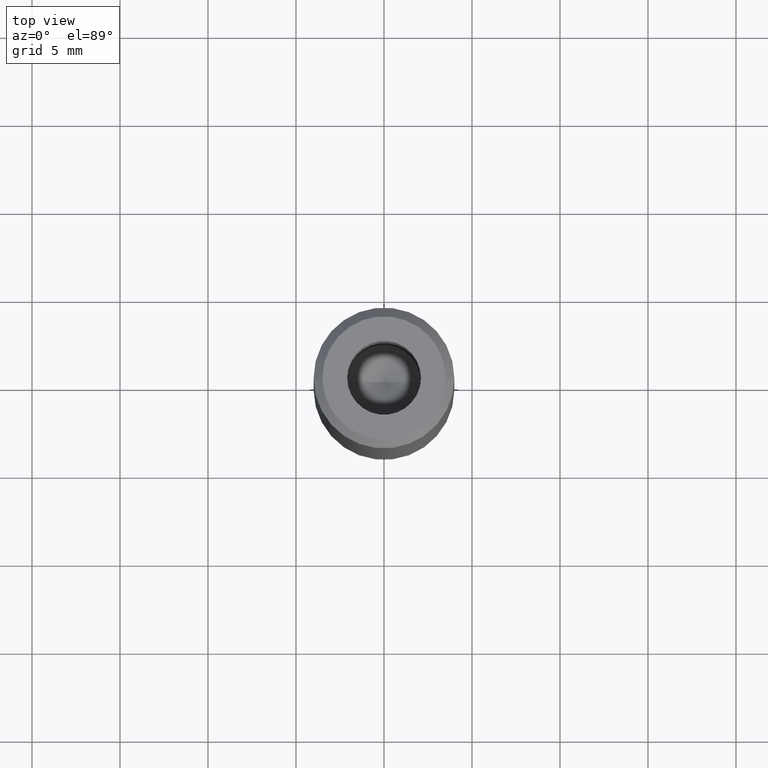
[diagram: clean part render]
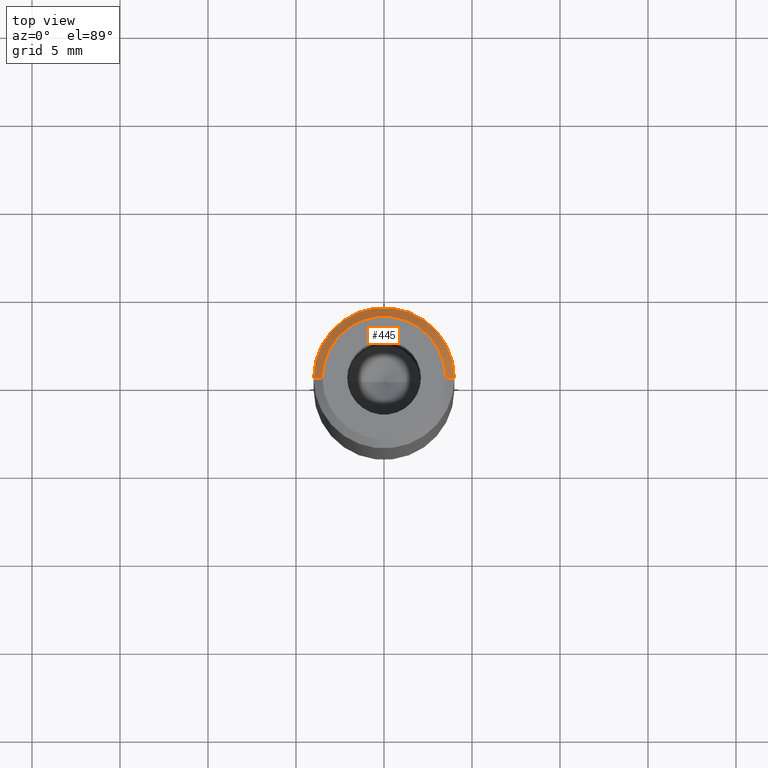
[diagram: same view with one face highlighted and labeled with its STEP entity id]
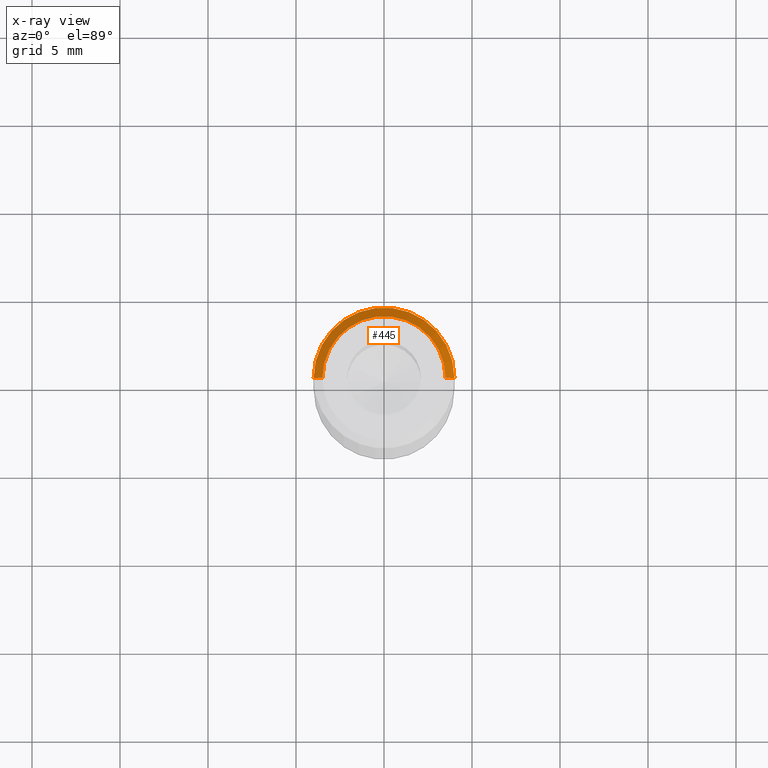
[diagram: x-ray of the same camera — body ghosted, the highlighted face saturated]
A machine part, top view. The second image highlights one B-rep face of the part: STEP entity #445.
The next image is the same camera in x-ray: the body ghosted, the highlighted face saturated — about 0% of this face is hidden behind the body in this view.
In plain terms, the highlighted conical surface has half-angle 45 deg.
Its self-contained STEP definition (entity closure, byte-faithful):
#10 = VECTOR ( 'NONE', #544, 1000.000000000000114 ) ;
#39 = CARTESIAN_POINT ( 'NONE',  ( 0.000000000000000000, 0.000000000000000000, 0.000000000000000000 ) ) ;
#83 = DIRECTION ( 'NONE',  ( 1.000000000000000000, 0.000000000000000000, 0.000000000000000000 ) ) ;
#111 = VERTEX_POINT ( 'NONE', #306 ) ;
#120 = EDGE_CURVE ( 'NONE', #247, #229, #303, .T. ) ;
#139 = CARTESIAN_POINT ( 'NONE',  ( 3.500000000000003109, 4.286263797015740046E-16, 0.000000000000000000 ) ) ;
#190 = ORIENTED_EDGE ( 'NONE', *, *, #426, .F. ) ;
#193 = VECTOR ( 'NONE', #333, 1000.000000000000114 ) ;
#217 = EDGE_CURVE ( 'NONE', #111, #262, #269, .T. ) ;
#228 = LINE ( 'NONE', #139, #10 ) ;
#229 = VERTEX_POINT ( 'NONE', #527 ) ;
#242 = LINE ( 'NONE', #459, #193 ) ;
#243 = ORIENTED_EDGE ( 'NONE', *, *, #321, .T. ) ;
#247 = VERTEX_POINT ( 'NONE', #582 ) ;
#262 = VERTEX_POINT ( 'NONE', #493 ) ;
#269 = CIRCLE ( 'NONE', #586, 4.000000000000000000 ) ;
#303 = CIRCLE ( 'NONE', #528, 3.500000000000003109 ) ;
#306 = CARTESIAN_POINT ( 'NONE',  ( -4.000000000000000000, 4.898587196589412829E-16, -0.4999999999999935052 ) ) ;
#312 = CARTESIAN_POINT ( 'NONE',  ( 0.000000000000000000, 0.000000000000000000, -0.4999999999999935052 ) ) ;
#320 = ORIENTED_EDGE ( 'NONE', *, *, #217, .F. ) ;
#321 = EDGE_CURVE ( 'NONE', #247, #262, #228, .T. ) ;
#333 = DIRECTION ( 'NONE',  ( -0.7071067811865500152, 0.000000000000000000, -0.7071067811865451302 ) ) ;
#337 = CONICAL_SURFACE ( 'NONE', #480, 3.500000000000003109, 0.7853981633974517207 ) ;
#357 = DIRECTION ( 'NONE',  ( 0.000000000000000000, 0.000000000000000000, -1.000000000000000000 ) ) ;
#398 = DIRECTION ( 'NONE',  ( -1.000000000000000000, 0.000000000000000000, 0.000000000000000000 ) ) ;
#426 = EDGE_CURVE ( 'NONE', #229, #111, #242, .T. ) ;
#445 = ADVANCED_FACE ( 'NONE', ( #490 ), #337, .T. ) ;
#459 = CARTESIAN_POINT ( 'NONE',  ( -3.500000000000003109, 0.000000000000000000, 0.000000000000000000 ) ) ;
#474 = DIRECTION ( 'NONE',  ( -0.000000000000000000, -0.000000000000000000, 1.000000000000000000 ) ) ;
#480 = AXIS2_PLACEMENT_3D ( 'NONE', #39, #580, #398 ) ;
#488 = ORIENTED_EDGE ( 'NONE', *, *, #120, .F. ) ;
#490 = FACE_OUTER_BOUND ( 'NONE', #520, .T. ) ;
#493 = CARTESIAN_POINT ( 'NONE',  ( 4.000000000000000000, 0.000000000000000000, -0.4999999999999935052 ) ) ;
#520 = EDGE_LOOP ( 'NONE', ( #488, #243, #320, #190 ) ) ;
#527 = CARTESIAN_POINT ( 'NONE',  ( -3.500000000000003109, 0.000000000000000000, 0.000000000000000000 ) ) ;
#528 = AXIS2_PLACEMENT_3D ( 'NONE', #564, #474, #83 ) ;
#544 = DIRECTION ( 'NONE',  ( 0.7071067811865500152, 8.659560562354963673E-17, -0.7071067811865451302 ) ) ;
#564 = CARTESIAN_POINT ( 'NONE',  ( 0.000000000000000000, 0.000000000000000000, 0.000000000000000000 ) ) ;
#579 = DIRECTION ( 'NONE',  ( 1.000000000000000000, 0.000000000000000000, 0.000000000000000000 ) ) ;
#580 = DIRECTION ( 'NONE',  ( 0.000000000000000000, 0.000000000000000000, -1.000000000000000000 ) ) ;
#582 = CARTESIAN_POINT ( 'NONE',  ( 3.500000000000003109, 4.592425496802575944E-16, 0.000000000000000000 ) ) ;
#586 = AXIS2_PLACEMENT_3D ( 'NONE', #312, #357, #579 ) ;